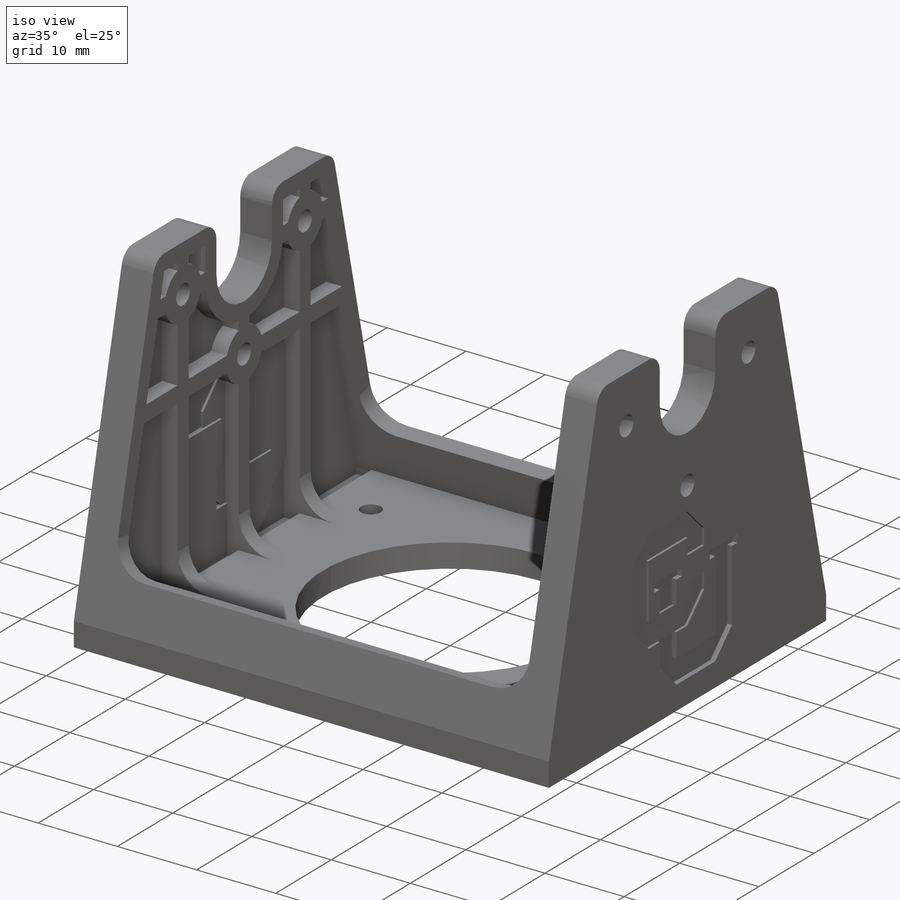
[diagram: iso view]
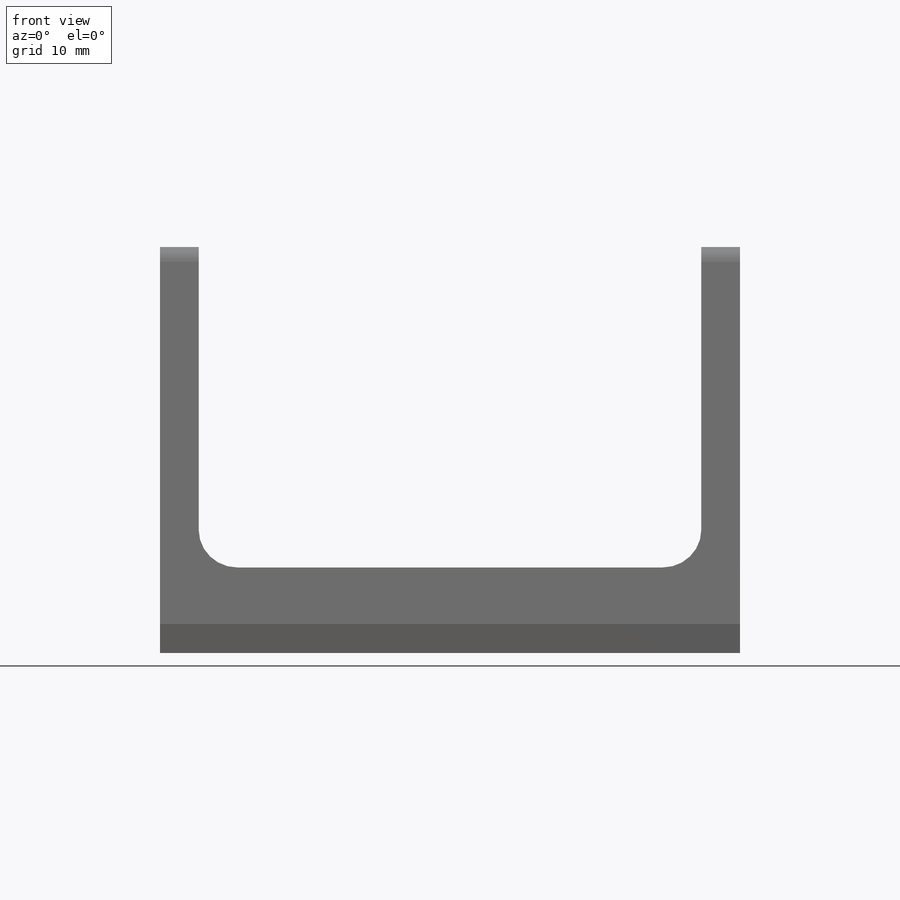
[diagram: front view]
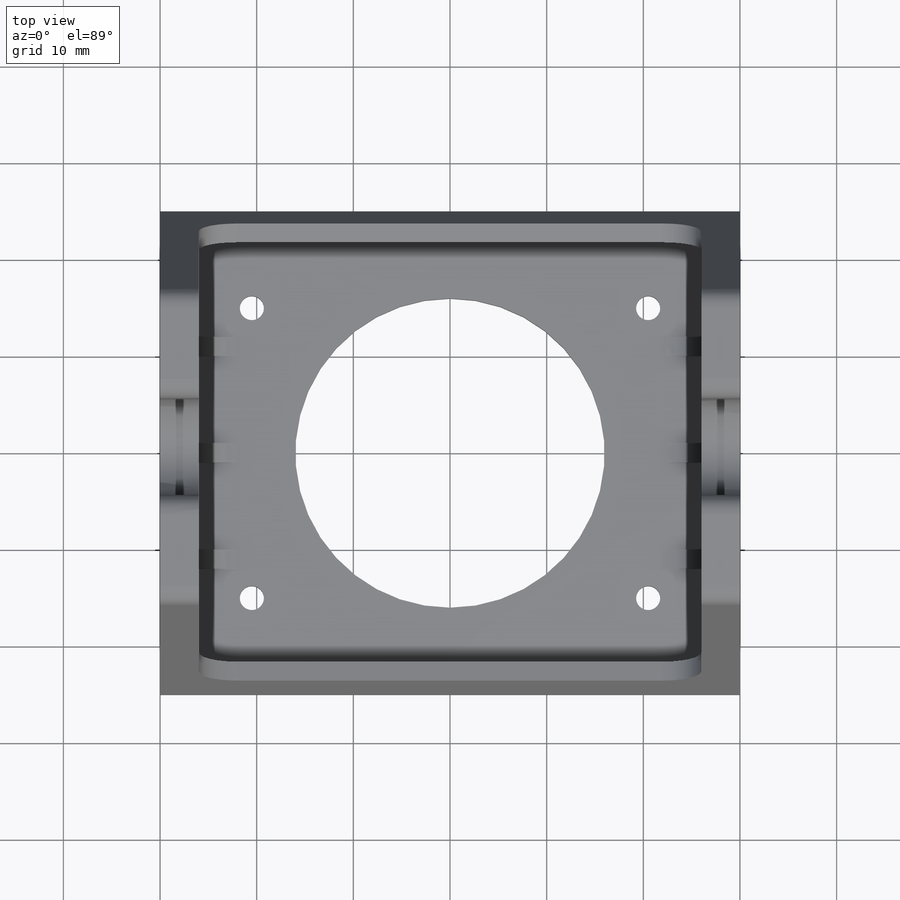
[diagram: top view]
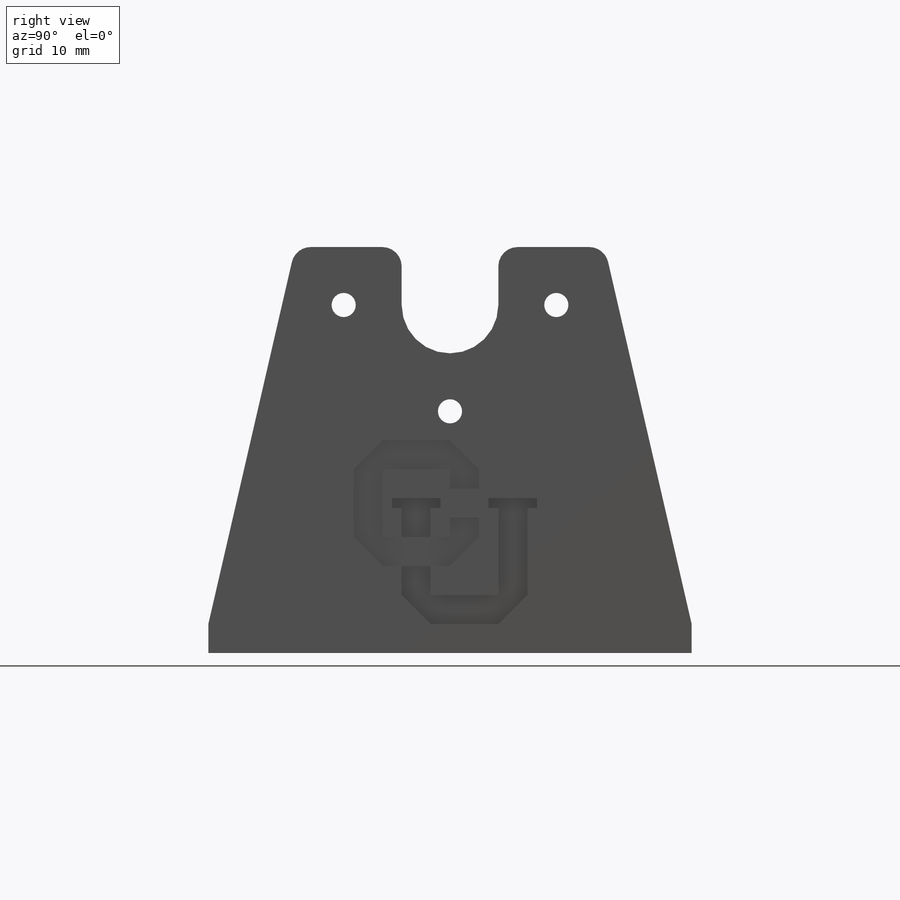
[diagram: right view]
SOLIDWORKS PART (.sldprt)
format: sldprt  version: not decoded by parser v0  size: 819,712 bytes
history: native  units: mm
features: sketch x9, cut_extrude x5, extrude x4, mirror x3, fillet x3, material x1, pattern_circular x1, shell x1 (+11 scaffold rows collapsed)
feature tree (38):
  scaffold x11  (default folders/planes/origin — collapsed)
  material  "Material <not specified>"
  sketch  "Sketch2"  dims[D1=52.0mm D2=50.0mm]
  extrude  "Boss-Extrude2"  Depth=3mm
  sketch  "Sketch3"  dims[c1.D3=~4.855268mm c1.D1=42.0mm c1.D2=36.0mm c2.D3=10.0mm c2.D4=32.0mm]
  extrude  "Boss-Extrude3"  Depth=4mm
  sketch  "Sketch4"  dims[D1=16.0mm D2=22.0mm D3=2.0mm D4=2.5mm]
  cut_extrude  "Cut-Extrude1"  [1 undecoded]
  mirror  "Mirror1"
  sketch  "Sketch5"  dims[D1=6.0mm]
  extrude  "Boss-Extrude4"  Depth=2mm
  mirror  "Mirror2"
  sketch  "Sketch7"  dims[D1=32.0mm]
  cut_extrude  "Cut-Extrude2"  [1 undecoded]
  sketch  "Sketch8"  dims[c1.D1=50.8mm c1.D2=2.5mm c1.D3=41.0mm c2.D1=30.0mm]
  cut_extrude  "Cut-Extrude3"  [1 undecoded]
  fillet  "Fillet2"  Radius=2mm
  sketch  "Sketch15"  dims[c1.D1=~4.370282mm c2.D1=45.0deg c2.D2=0.5mm c2.D3=3.0mm c3.D2=3.0mm c3.D4=13.0mm c3.D5=9.0mm]
  cut_extrude  "Cut-Extrude4"  Depth=0.3mm
  sketch  "Sketch16"  dims[c1.D1=1.0mm c1.D2=~6.486808mm c2.D2=45.0deg c2.D3=1.0mm c2.D4=2.0mm c2.D5=3.0mm]
  cut_extrude  "Cut-Extrude5"  Depth=0.6mm
  pattern_circular  "CirPattern2"  Count=2 Angle=180deg
  shell  "Shell2"  Thickness=2mm
  sketch  "Sketch12"  dims[D1=2.0mm D2=~4.101282mm]
  extrude  "Boss-Extrude7"  [1 undecoded]
  mirror  "Mirror3"
  fillet  "Fillet3"  Radius=4mm
  fillet  "Fillet4"  Radius=4mm
decode coverage: 19 of 26 modeling features carry decoded parameters
note: ~ marks probable driven/reference dimensions
note: 4 parameter values undecoded
summary: no parameter record found for 4 features
note: suppression state not decoded; provenance and decode notes live in map.json
